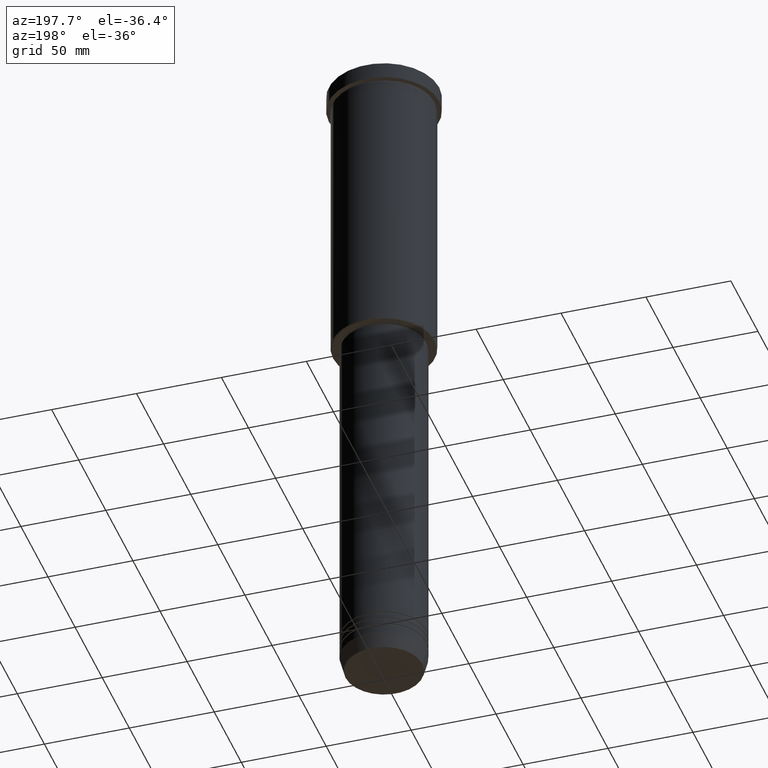
[diagram: clean part render]
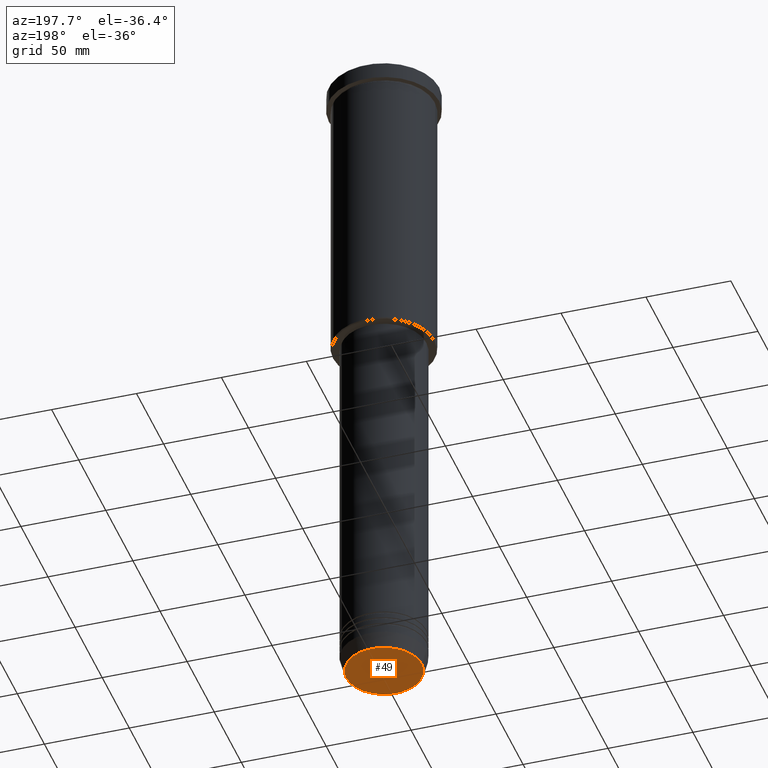
[diagram: same view with one face highlighted and labeled with its STEP entity id]
A machine part, auxiliary view. The second image highlights one B-rep face of the part: STEP entity #49.
In plain terms, the highlighted planar face has unit normal (0, -0, 1).
Its self-contained STEP definition (entity closure, byte-faithful):
#49 = ADVANCED_FACE ( 'NONE', ( #1165 ), #702, .F. ) ;
#59 = CARTESIAN_POINT ( 'NONE',  ( 0.000000000000000000, 0.000000000000000000, -400.0000000000000000 ) ) ;
#70 = ORIENTED_EDGE ( 'NONE', *, *, #392, .T. ) ;
#188 = CARTESIAN_POINT ( 'NONE',  ( -22.20479377413040467, 2.748875911406054788E-15, -400.0000000000000000 ) ) ;
#283 = CARTESIAN_POINT ( 'NONE',  ( 0.000000000000000000, 0.000000000000000000, -400.0000000000000000 ) ) ;
#392 = EDGE_CURVE ( 'NONE', #961, #901, #574, .T. ) ;
#393 = DIRECTION ( 'NONE',  ( 0.000000000000000000, 0.000000000000000000, -1.000000000000000000 ) ) ;
#517 = AXIS2_PLACEMENT_3D ( 'NONE', #59, #606, #879 ) ;
#574 = CIRCLE ( 'NONE', #1101, 22.20479377413040467 ) ;
#598 = DIRECTION ( 'NONE',  ( 0.000000000000000000, -0.000000000000000000, 1.000000000000000000 ) ) ;
#606 = DIRECTION ( 'NONE',  ( 0.000000000000000000, 0.000000000000000000, -1.000000000000000000 ) ) ;
#662 = DIRECTION ( 'NONE',  ( 1.000000000000000000, 0.000000000000000000, 0.000000000000000000 ) ) ;
#673 = AXIS2_PLACEMENT_3D ( 'NONE', #799, #598, #683 ) ;
#683 = DIRECTION ( 'NONE',  ( 1.000000000000000000, 0.000000000000000000, 0.000000000000000000 ) ) ;
#689 = CARTESIAN_POINT ( 'NONE',  ( 22.20479377413040467, 0.000000000000000000, -400.0000000000000000 ) ) ;
#702 = PLANE ( 'NONE',  #673 ) ;
#782 = ORIENTED_EDGE ( 'NONE', *, *, #823, .T. ) ;
#799 = CARTESIAN_POINT ( 'NONE',  ( 0.000000000000000000, 0.000000000000000000, -400.0000000000000000 ) ) ;
#823 = EDGE_CURVE ( 'NONE', #901, #961, #1044, .T. ) ;
#879 = DIRECTION ( 'NONE',  ( 1.000000000000000000, 0.000000000000000000, 0.000000000000000000 ) ) ;
#901 = VERTEX_POINT ( 'NONE', #689 ) ;
#961 = VERTEX_POINT ( 'NONE', #188 ) ;
#989 = EDGE_LOOP ( 'NONE', ( #782, #70 ) ) ;
#1044 = CIRCLE ( 'NONE', #517, 22.20479377413040467 ) ;
#1101 = AXIS2_PLACEMENT_3D ( 'NONE', #283, #393, #662 ) ;
#1165 = FACE_OUTER_BOUND ( 'NONE', #989, .T. ) ;